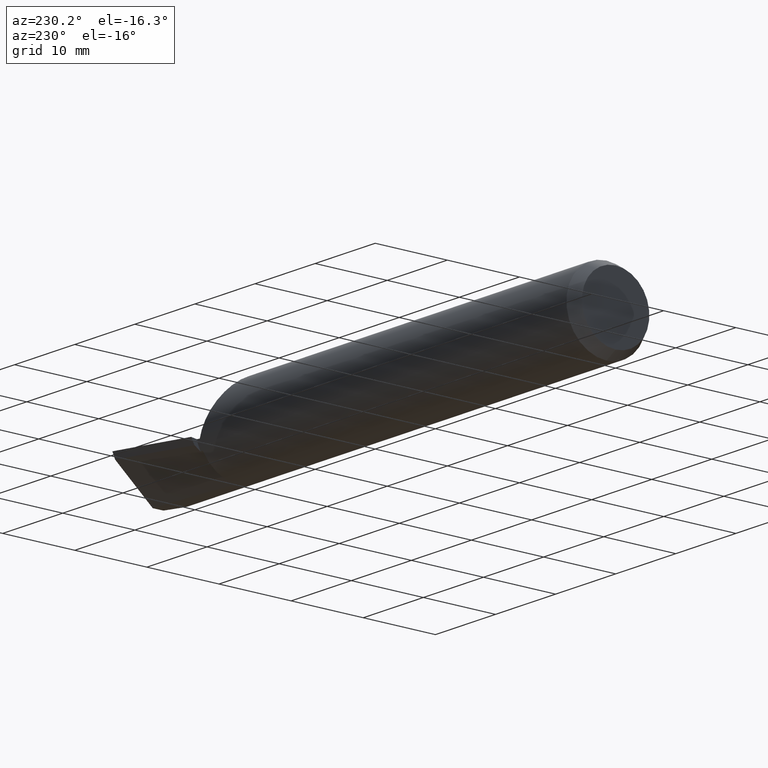
[diagram: clean part render]
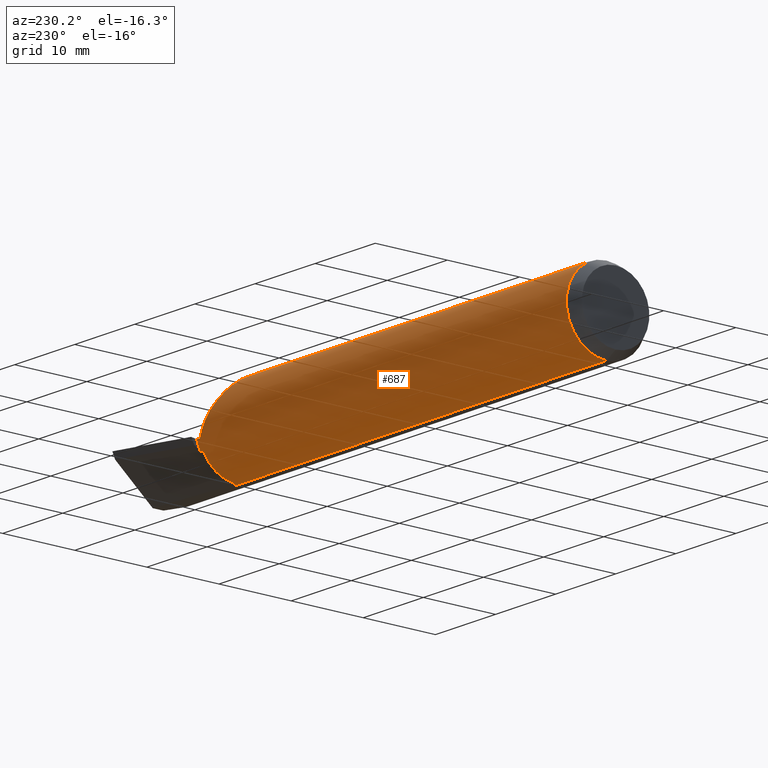
[diagram: same view with one face highlighted and labeled with its STEP entity id]
A machine part, auxiliary view. The second image highlights one B-rep face of the part: STEP entity #687.
In plain terms, the highlighted cylindrical surface (partial cylindrical patch) has radius 5.5537 mm, axis along (-1, -0, -0).
Its self-contained STEP definition (entity closure, byte-faithful):
#8 = AXIS2_PLACEMENT_3D ( 'NONE', #275, #504, #166 ) ;
#11 = CARTESIAN_POINT ( 'NONE',  ( 2.397833416469516976, 0.2114095307937698398, 0.05580185651004447578 ) ) ;
#33 = CYLINDRICAL_SURFACE ( 'NONE', #42, 0.2186499999999999555 ) ;
#38 =( BOUNDED_CURVE ( )  B_SPLINE_CURVE ( 2, ( #173, #64, #438 ),
 .UNSPECIFIED., .F., .T. ) 
 B_SPLINE_CURVE_WITH_KNOTS ( ( 3, 3 ),
 ( 0.4075927071583006489, 0.4196108242066911576 ),
 .UNSPECIFIED. ) 
 CURVE ( )  GEOMETRIC_REPRESENTATION_ITEM ( )  RATIONAL_B_SPLINE_CURVE ( ( 0.9974221972044268192, 0.9975518224474401174, 0.9976913329914361972 ) ) 
 REPRESENTATION_ITEM ( '' )  );
#39 = CARTESIAN_POINT ( 'NONE',  ( 2.363905207600466962, 0.1924089063709990555, 0.1039229917590402119 ) ) ;
#42 = AXIS2_PLACEMENT_3D ( 'NONE', #257, #140, #307 ) ;
#51 = CARTESIAN_POINT ( 'NONE',  ( 2.328047902314449136, 0.1546146149302987938, 0.1546032736966543308 ) ) ;
#57 = CARTESIAN_POINT ( 'NONE',  ( 2.326556738207085306, 0.1524046853324498574, 0.1567870027476327421 ) ) ;
#59 = CARTESIAN_POINT ( 'NONE',  ( 2.421570427800182834, 0.2176470342228374322, 0.02093183762544963827 ) ) ;
#60 = VERTEX_POINT ( 'NONE', #260 ) ;
#62 = CARTESIAN_POINT ( 'NONE',  ( 2.397994206653932814, 0.2114706548956105103, 0.05556976712593909851 ) ) ;
#64 = CARTESIAN_POINT ( 'NONE',  ( 2.482495906476935410, 0.01541270954320094443, -0.2181071841326581162 ) ) ;
#66 = CARTESIAN_POINT ( 'NONE',  ( 2.388474757434112306, 0.2074262837235378298, 0.06924111559165470331 ) ) ;
#75 = CARTESIAN_POINT ( 'NONE',  ( 2.423203999389649699, 0.2178669501258466701, 0.01848827045659664006 ) ) ;
#78 = EDGE_CURVE ( 'NONE', #372, #99, #162, .T. ) ;
#86 = EDGE_CURVE ( 'NONE', #280, #290, #319, .T. ) ;
#87 = EDGE_CURVE ( 'NONE', #545, #702, #222, .T. ) ;
#94 = CARTESIAN_POINT ( 'NONE',  ( 2.474998967115994652, 0.1911388645456205126, -0.1061779492325103103 ) ) ;
#96 = EDGE_CURVE ( 'NONE', #484, #524, #707, .T. ) ;
#97 = CARTESIAN_POINT ( 'NONE',  ( 2.489999999999999769, 0.2114691027157989678, -0.05557554405431827660 ) ) ;
#98 = CARTESIAN_POINT ( 'NONE',  ( 2.315200195965978924, 0.1325952822649140439, 0.1740109497427286545 ) ) ;
#99 = VERTEX_POINT ( 'NONE', #466 ) ;
#106 = DIRECTION ( 'NONE',  ( -1.000000000000000000, -0.000000000000000000, -0.000000000000000000 ) ) ;
#112 = DIRECTION ( 'NONE',  ( 1.000000000000000000, 0.000000000000000000, 0.000000000000000000 ) ) ;
#113 = DIRECTION ( 'NONE',  ( -1.000000000000000000, 0.000000000000000000, 0.000000000000000000 ) ) ;
#114 = EDGE_CURVE ( 'NONE', #517, #484, #297, .T. ) ;
#118 = CARTESIAN_POINT ( 'NONE',  ( 2.471346566983472215, 0.2110442653468279639, -0.05716765312847496561 ) ) ;
#119 = ORIENTED_EDGE ( 'NONE', *, *, #96, .T. ) ;
#121 = CARTESIAN_POINT ( 'NONE',  ( 2.397033353014935475, 0.2111023645173862595, 0.05695621974847775437 ) ) ;
#125 = CARTESIAN_POINT ( 'NONE',  ( 2.391960524979533709, 0.2090039576888228501, 0.06425115845136457338 ) ) ;
#130 = VERTEX_POINT ( 'NONE', #645 ) ;
#140 = DIRECTION ( 'NONE',  ( -1.000000000000000000, -0.000000000000000000, -0.000000000000000000 ) ) ;
#144 = ORIENTED_EDGE ( 'NONE', *, *, #464, .F. ) ;
#150 = CARTESIAN_POINT ( 'NONE',  ( 2.367367877305577739, 0.1949327976827348041, 0.09905738301277858260 ) ) ;
#162 =( BOUNDED_CURVE ( )  B_SPLINE_CURVE ( 2, ( #94, #505, #610 ),
 .UNSPECIFIED., .F., .T. ) 
 B_SPLINE_CURVE_WITH_KNOTS ( ( 3, 3 ),
 ( 0.5803891757933095086, 0.5924072928417014605 ),
 .UNSPECIFIED. ) 
 CURVE ( )  GEOMETRIC_REPRESENTATION_ITEM ( )  RATIONAL_B_SPLINE_CURVE ( ( 0.9976913329914360862, 0.9975518224474400064, 0.9974221972044267082 ) ) 
 REPRESENTATION_ITEM ( '' )  );
#166 = DIRECTION ( 'NONE',  ( 0.000000000000000000, 0.000000000000000000, 1.000000000000000000 ) ) ;
#167 = CARTESIAN_POINT ( 'NONE',  ( 2.355166375661937650, 0.1853570673493268317, 0.1161901871610523107 ) ) ;
#173 = CARTESIAN_POINT ( 'NONE',  ( 2.489999999999999769, 0.01609851000112816344, -0.2180565533886646701 ) ) ;
#174 = CARTESIAN_POINT ( 'NONE',  ( 2.433059707276096884, 0.2191156137562938755, 0.003690420362174034932 ) ) ;
#177 = DIRECTION ( 'NONE',  ( 0.000000000000000000, 0.000000000000000000, 1.000000000000000000 ) ) ;
#181 = CARTESIAN_POINT ( 'NONE',  ( 2.423233938071986504, 0.2178707556036081072, 0.01844333415305262486 ) ) ;
#194 = CIRCLE ( 'NONE', #8, 0.2186499999999999555 ) ;
#195 = CARTESIAN_POINT ( 'NONE',  ( 2.301661883401521003, 0.0003876334332872562465, 0.2186500005415279446 ) ) ;
#202 = CARTESIAN_POINT ( 'NONE',  ( 2.300264159778933504, 0.008933953364419744067, 0.2184745173646372718 ) ) ;
#203 = EDGE_CURVE ( 'NONE', #130, #524, #701, .T. ) ;
#205 = AXIS2_PLACEMENT_3D ( 'NONE', #625, #113, #177 ) ;
#209 = ORIENTED_EDGE ( 'NONE', *, *, #722, .T. ) ;
#216 = CARTESIAN_POINT ( 'NONE',  ( 2.312534214554919476, 0.1267698187323545722, 0.1782919693017153973 ) ) ;
#222 = LINE ( 'NONE', #741, #526 ) ;
#224 = CARTESIAN_POINT ( 'NONE',  ( 2.327677241066233194, 0.1540711808845480757, 0.1551449276955550460 ) ) ;
#226 = CARTESIAN_POINT ( 'NONE',  ( 2.410943118938231766, 0.2156394942512017132, 0.03669571857653452368 ) ) ;
#233 = CARTESIAN_POINT ( 'NONE',  ( 2.422981224190761118, 0.2178384048208437118, 0.01882239950287337843 ) ) ;
#239 = CARTESIAN_POINT ( 'NONE',  ( 2.418947809790076509, 0.2172440735159782976, 0.02483878854210490317 ) ) ;
#242 = CARTESIAN_POINT ( 'NONE',  ( 2.301726246469366188, -1.097537071093359530E-06, 0.2186592195482873757 ) ) ;
#248 = ORIENTED_EDGE ( 'NONE', *, *, #114, .T. ) ;
#254 = CARTESIAN_POINT ( 'NONE',  ( 2.300668130135382405, 0.006275985951871166507, 0.2185726620587439550 ) ) ;
#257 = CARTESIAN_POINT ( 'NONE',  ( 0.000000000000000000, 0.000000000000000000, 0.000000000000000000 ) ) ;
#259 = CARTESIAN_POINT ( 'NONE',  ( 2.301571563392668995, 0.0009007926053188890659, 0.2186486067439287750 ) ) ;
#260 = CARTESIAN_POINT ( 'NONE',  ( 2.489999999999999769, 0.01609851000112816344, -0.2180565533886646701 ) ) ;
#261 = CIRCLE ( 'NONE', #680, 0.2186499999999999555 ) ;
#262 = DIRECTION ( 'NONE',  ( 0.000000000000000000, 0.000000000000000000, 1.000000000000000000 ) ) ;
#265 = CARTESIAN_POINT ( 'NONE',  ( 2.351115144369523069, 0.1816527304700217560, 0.1218706312577468032 ) ) ;
#271 = CARTESIAN_POINT ( 'NONE',  ( 2.339809942963884559, 0.1702993353926188502, 0.1377509704733023699 ) ) ;
#275 = CARTESIAN_POINT ( 'NONE',  ( 2.489999999999999769, 0.000000000000000000, 0.000000000000000000 ) ) ;
#279 = CARTESIAN_POINT ( 'NONE',  ( 2.376457864700647793, 0.2009676489907394059, 0.08627223400867724268 ) ) ;
#280 = VERTEX_POINT ( 'NONE', #533 ) ;
#281 = CARTESIAN_POINT ( 'NONE',  ( 2.423253717541535845, 0.2178732670025563534, 0.01841364297473834649 ) ) ;
#285 = CARTESIAN_POINT ( 'NONE',  ( 2.386279324233712362, 0.2063497684418771350, 0.07236968066713952985 ) ) ;
#290 = VERTEX_POINT ( 'NONE', #507 ) ;
#293 = CARTESIAN_POINT ( 'NONE',  ( 2.441958321769100326, 0.2187870391100780187, -0.01010680176256687976 ) ) ;
#294 = ORIENTED_EDGE ( 'NONE', *, *, #453, .T. ) ;
#297 = CIRCLE ( 'NONE', #205, 0.2186499999999999555 ) ;
#307 = DIRECTION ( 'NONE',  ( 0.000000000000000000, 0.000000000000000000, 1.000000000000000000 ) ) ;
#319 = LINE ( 'NONE', #670, #499 ) ;
#323 = CARTESIAN_POINT ( 'NONE',  ( 2.372283168852955981, 0.1982860555661835056, 0.09214581790529174921 ) ) ;
#325 = ORIENTED_EDGE ( 'NONE', *, *, #78, .F. ) ;
#333 = CARTESIAN_POINT ( 'NONE',  ( 2.322048475153072999, 0.1452844629865160941, 0.1634757013975009776 ) ) ;
#340 = CARTESIAN_POINT ( 'NONE',  ( 2.393751563188450948, 0.2097834464265080356, 0.06168193126619232747 ) ) ;
#347 = CARTESIAN_POINT ( 'NONE',  ( 2.398043971051627032, 0.2114895497985063155, 0.05549793209714533326 ) ) ;
#351 = CIRCLE ( 'NONE', #456, 0.2186499999999999555 ) ;
#352 = CARTESIAN_POINT ( 'NONE',  ( 2.420983759668447366, 0.2175622048859026381, 0.02180692788309090274 ) ) ;
#355 = CARTESIAN_POINT ( 'NONE',  ( 2.405285100613326676, 0.2142245497771505802, 0.04504311766563427744 ) ) ;
#367 = ORIENTED_EDGE ( 'NONE', *, *, #691, .F. ) ;
#372 = VERTEX_POINT ( 'NONE', #562 ) ;
#390 = CARTESIAN_POINT ( 'NONE',  ( 2.361667468836358807, 0.1906757896823392806, 0.1070652166029290170 ) ) ;
#396 = CARTESIAN_POINT ( 'NONE',  ( 2.457979820255079328, 0.2161354240335464916, -0.03543154529881034631 ) ) ;
#397 = ORIENTED_EDGE ( 'NONE', *, *, #428, .F. ) ;
#407 = CARTESIAN_POINT ( 'NONE',  ( 2.395925378028880726, 0.2106676904138133355, 0.05855338454461735120 ) ) ;
#408 = ORIENTED_EDGE ( 'NONE', *, *, #87, .F. ) ;
#411 = VERTEX_POINT ( 'NONE', #673 ) ;
#420 = CARTESIAN_POINT ( 'NONE',  ( 2.301415447608446740, 0.001800015976607186258, 0.2186430529444350068 ) ) ;
#427 = CARTESIAN_POINT ( 'NONE',  ( 2.300000000000000711, 0.01069301138062624286, 0.2183883742501275815 ) ) ;
#428 = EDGE_CURVE ( 'NONE', #60, #411, #38, .T. ) ;
#432 = DIRECTION ( 'NONE',  ( -1.000000000000000000, -0.000000000000000000, -0.000000000000000000 ) ) ;
#438 = CARTESIAN_POINT ( 'NONE',  ( 2.474996901347982892, 0.01471922584789448971, -0.2181539979772589843 ) ) ;
#439 = CARTESIAN_POINT ( 'NONE',  ( 2.302117979541468351, 0.09661801112770476707, 0.1966091003016625649 ) ) ;
#451 = CARTESIAN_POINT ( 'NONE',  ( 2.327339098440490694, 0.1535724871066051767, 0.1556396391440469651 ) ) ;
#453 = EDGE_CURVE ( 'NONE', #60, #280, #194, .T. ) ;
#456 = AXIS2_PLACEMENT_3D ( 'NONE', #487, #602, #590 ) ;
#459 = CARTESIAN_POINT ( 'NONE',  ( 2.373198069281532874, 0.1988781926060889937, 0.09085868690086905397 ) ) ;
#464 = EDGE_CURVE ( 'NONE', #411, #372, #261, .T. ) ;
#466 = CARTESIAN_POINT ( 'NONE',  ( 2.489999999999999769, 0.1918135994642089504, -0.1049541116906446275 ) ) ;
#470 = CARTESIAN_POINT ( 'NONE',  ( 2.373302573659570758, 0.1989452789271060618, 0.09071165374625275724 ) ) ;
#484 = VERTEX_POINT ( 'NONE', #632 ) ;
#487 = CARTESIAN_POINT ( 'NONE',  ( 2.489999999999999769, 0.000000000000000000, 0.000000000000000000 ) ) ;
#488 = CARTESIAN_POINT ( 'NONE',  ( 2.369125727547871207, 0.1961757832042420879, 0.09658652870678996472 ) ) ;
#491 = CARTESIAN_POINT ( 'NONE',  ( 2.300000000000000711, 0.08415770461942115310, 0.2018051120591107528 ) ) ;
#498 = CARTESIAN_POINT ( 'NONE',  ( 2.305507494335688357, 0.1089507565844234083, 0.1901071228948384706 ) ) ;
#499 = VECTOR ( 'NONE', #106, 39.37007874015748143 ) ;
#504 = DIRECTION ( 'NONE',  ( -1.000000000000000000, -0.000000000000000000, -0.000000000000000000 ) ) ;
#505 = CARTESIAN_POINT ( 'NONE',  ( 2.482495906476937630, 0.1914835127187945740, -0.1055573765428618332 ) ) ;
#507 = CARTESIAN_POINT ( 'NONE',  ( 0.05999999999999999778, 2.677690226335687467E-17, -0.2186499999999999555 ) ) ;
#508 = CARTESIAN_POINT ( 'NONE',  ( 2.465102704248053556, 0.2138155167977607574, -0.04696383832082077353 ) ) ;
#516 = CARTESIAN_POINT ( 'NONE',  ( 2.397592607399421816, 0.2113176932515416495, 0.05614940170787371260 ) ) ;
#517 = VERTEX_POINT ( 'NONE', #643 ) ;
#519 = CARTESIAN_POINT ( 'NONE',  ( 2.373045229115883892, 0.1987798122955276026, 0.09107372125574773880 ) ) ;
#524 = VERTEX_POINT ( 'NONE', #579 ) ;
#526 = VECTOR ( 'NONE', #432, 39.37007874015748143 ) ;
#532 = CARTESIAN_POINT ( 'NONE',  ( 0.05999999999999999778, 0.000000000000000000, 0.2186499999999999555 ) ) ;
#533 = CARTESIAN_POINT ( 'NONE',  ( 2.489999999999999769, 0.000000000000000000, -0.2186499999999999277 ) ) ;
#545 = VERTEX_POINT ( 'NONE', #242 ) ;
#552 = CARTESIAN_POINT ( 'NONE',  ( 2.325018574646905201, 0.1500525979030662427, 0.1590538414227920527 ) ) ;
#556 = DIRECTION ( 'NONE',  ( 0.000000000000000000, 0.000000000000000000, -1.000000000000000000 ) ) ;
#560 = CARTESIAN_POINT ( 'NONE',  ( 2.422648978798818575, 0.2177951105102039209, 0.01932009123605462134 ) ) ;
#562 = CARTESIAN_POINT ( 'NONE',  ( 2.474998967115994652, 0.1911388645456205126, -0.1061779492325103103 ) ) ;
#564 = CARTESIAN_POINT ( 'NONE',  ( 2.423234999096579134, 0.2178708968474347696, 0.01844174950760433043 ) ) ;
#565 = ORIENTED_EDGE ( 'NONE', *, *, #716, .T. ) ;
#572 = CARTESIAN_POINT ( 'NONE',  ( 2.417222582560278443, 0.2169486243322635288, 0.02740261093452541624 ) ) ;
#579 = CARTESIAN_POINT ( 'NONE',  ( 2.471346566983472215, 0.2110442653468279639, -0.05716765312847496561 ) ) ;
#590 = DIRECTION ( 'NONE',  ( 0.000000000000000000, 0.000000000000000000, 1.000000000000000000 ) ) ;
#595 = CARTESIAN_POINT ( 'NONE',  ( 2.301184492781924718, 0.003146918431362808171, 0.2186305735167799191 ) ) ;
#599 = CARTESIAN_POINT ( 'NONE',  ( 2.371222954762588042, 0.1975890853420695648, 0.09363716917474711188 ) ) ;
#602 = DIRECTION ( 'NONE',  ( -1.000000000000000000, -0.000000000000000000, -0.000000000000000000 ) ) ;
#610 = CARTESIAN_POINT ( 'NONE',  ( 2.489999999999999769, 0.1918135994642089504, -0.1049541116906446275 ) ) ;
#612 = CARTESIAN_POINT ( 'NONE',  ( 2.319684780089545928, 0.1410945944728176082, 0.1670733735903803807 ) ) ;
#614 = CARTESIAN_POINT ( 'NONE',  ( 2.475000000000000089, 0.000000000000000000, 0.000000000000000000 ) ) ;
#618 = B_SPLINE_CURVE_WITH_KNOTS ( 'NONE', 3,
 ( #663, #195, #259, #420, #595, #254, #202, #427 ),
 .UNSPECIFIED., .F., .F.,
 ( 4, 2, 1, 1, 4 ),
 ( 0.9685658636575118496, 0.9724951307003226741, 0.9764243977431334987, 0.9842829318287554807, 1.000000000000000000 ),
 .UNSPECIFIED. ) ;
#625 = CARTESIAN_POINT ( 'NONE',  ( 2.300000000000000711, 0.000000000000000000, 0.000000000000000000 ) ) ;
#629 = EDGE_LOOP ( 'NONE', ( #294, #725, #367, #408, #565, #248, #119, #652, #209, #325, #144, #397 ) ) ;
#632 = CARTESIAN_POINT ( 'NONE',  ( 2.300000000000000711, 0.08415770461942115310, 0.2018051120591107528 ) ) ;
#639 = CARTESIAN_POINT ( 'NONE',  ( 2.480670511054988481, 0.2112596837126563543, -0.05637239902461498031 ) ) ;
#643 = CARTESIAN_POINT ( 'NONE',  ( 2.300000000000000711, 0.01069301138062624286, 0.2183883742501275815 ) ) ;
#645 = CARTESIAN_POINT ( 'NONE',  ( 2.489999999999999769, 0.2114691027157989678, -0.05557554405431827660 ) ) ;
#652 = ORIENTED_EDGE ( 'NONE', *, *, #203, .F. ) ;
#654 = AXIS2_PLACEMENT_3D ( 'NONE', #715, #658, #262 ) ;
#658 = DIRECTION ( 'NONE',  ( -1.000000000000000000, -0.000000000000000000, -0.000000000000000000 ) ) ;
#661 = CARTESIAN_POINT ( 'NONE',  ( 2.333404465322260979, 0.1624201294929303319, 0.1467850412336475230 ) ) ;
#663 = CARTESIAN_POINT ( 'NONE',  ( 2.301726246469366188, -1.097537071093359530E-06, 0.2186592195482873757 ) ) ;
#664 = CARTESIAN_POINT ( 'NONE',  ( 2.471346566983472215, 0.2110442653468279639, -0.05716765312847496561 ) ) ;
#669 = CIRCLE ( 'NONE', #654, 0.2186499999999999555 ) ;
#670 = CARTESIAN_POINT ( 'NONE',  ( 0.000000000000000000, 2.677690226335687467E-17, -0.2186499999999999555 ) ) ;
#673 = CARTESIAN_POINT ( 'NONE',  ( 2.474996901347982892, 0.01471922584789448971, -0.2181539979772589843 ) ) ;
#676 = CARTESIAN_POINT ( 'NONE',  ( 2.327903301790694268, 0.1544032420682443785, 0.1548144573598772000 ) ) ;
#680 = AXIS2_PLACEMENT_3D ( 'NONE', #614, #112, #556 ) ;
#684 = CARTESIAN_POINT ( 'NONE',  ( 2.380078260122157729, 0.2031193701579266930, 0.08117539300901158161 ) ) ;
#687 = ADVANCED_FACE ( 'NONE', ( #719 ), #33, .T. ) ;
#689 = CARTESIAN_POINT ( 'NONE',  ( 2.422312457256203366, 0.2177498473727771389, 0.01982332407105567851 ) ) ;
#691 = EDGE_CURVE ( 'NONE', #702, #290, #669, .T. ) ;
#700 = CARTESIAN_POINT ( 'NONE',  ( 2.423132256118121663, 0.2178578002910111777, 0.01859591843064320460 ) ) ;
#701 =( BOUNDED_CURVE ( )  B_SPLINE_CURVE ( 2, ( #97, #639, #664 ),
 .UNSPECIFIED., .F., .T. ) 
 B_SPLINE_CURVE_WITH_KNOTS ( ( 3, 3 ),
 ( 0.3930158259847700841, 0.4074109194752288943 ),
 .UNSPECIFIED. ) 
 CURVE ( )  GEOMETRIC_REPRESENTATION_ITEM ( )  RATIONAL_B_SPLINE_CURVE ( ( 0.9733513826577548933, 0.9734889251378003872, 0.9736403117979953725 ) ) 
 REPRESENTATION_ITEM ( '' )  );
#702 = VERTEX_POINT ( 'NONE', #532 ) ;
#707 = B_SPLINE_CURVE_WITH_KNOTS ( 'NONE', 3,
 ( #491, #439, #498, #216, #98, #612, #333, #552, #57, #451, #224, #676, #51, #661, #271, #265, #167, #390, #39, #150, #488, #599, #323, #728, #519, #459, #470, #279, #684, #285, #66, #125, #340, #407, #121, #516, #11, #62, #347, #355, #226, #572, #239, #352, #59, #689, #560, #233, #700, #75, #181, #281, #564, #174, #293, #396, #508, #118 ),
 .UNSPECIFIED., .F., .F.,
 ( 4, 2, 2, 1, 1, 1, 1, 2, 2, 2, 2, 2, 1, 1, 1, 1, 2, 2, 2, 2, 1, 1, 1, 1, 2, 2, 2, 2, 2, 1, 1, 1, 1, 2, 2, 2, 4 ),
 ( 0.000000000000000000, 0.1249999999999772404, 0.1874999999999662770, 0.2187499999999611977, 0.2343749999999581723, 0.2421874999999570344, 0.2460937499999561184, 0.2480468749999560907, 0.2499999999999560907, 0.3749999999999512057, 0.4374999999999482081, 0.4687499999999467093, 0.4843749999999459321, 0.4921874999999460987, 0.4960937499999455436, 0.4980468749999457656, 0.4990234374999459321, 0.4999999999999461542, 0.5624999999999856781, 0.5937500000000054401, 0.6093750000000148770, 0.6171875000000195399, 0.6210937500000218714, 0.6230468750000236478, 0.6240234375000245359, 0.6250000000000253131, 0.6875000000000960343, 0.7187500000001307843, 0.7343750000001482148, 0.7421875000001555422, 0.7460937500001575406, 0.7480468750001586509, 0.7490234375001592060, 0.7495117187501594280, 0.7500000000001596501, 0.8750000000000798250, 1.000000000000000000 ),
 .UNSPECIFIED. ) ;
#715 = CARTESIAN_POINT ( 'NONE',  ( 0.05999999999999999778, 0.000000000000000000, 0.000000000000000000 ) ) ;
#716 = EDGE_CURVE ( 'NONE', #545, #517, #618, .T. ) ;
#719 = FACE_OUTER_BOUND ( 'NONE', #629, .T. ) ;
#722 = EDGE_CURVE ( 'NONE', #130, #99, #351, .T. ) ;
#725 = ORIENTED_EDGE ( 'NONE', *, *, #86, .T. ) ;
#728 = CARTESIAN_POINT ( 'NONE',  ( 2.372816176018892165, 0.1986320615790214128, 0.09139597521367295863 ) ) ;
#741 = CARTESIAN_POINT ( 'NONE',  ( 0.000000000000000000, 0.000000000000000000, 0.2186499999999999555 ) ) ;